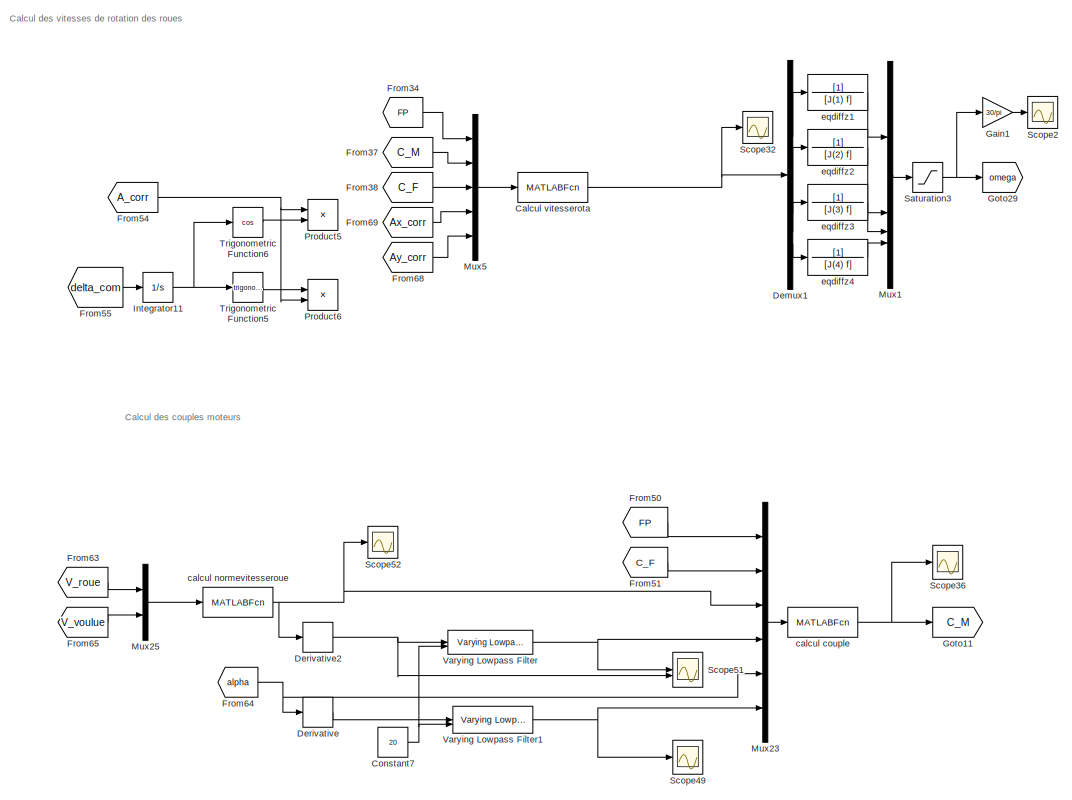
[diagram: root canvas - part 1/8, top right region]
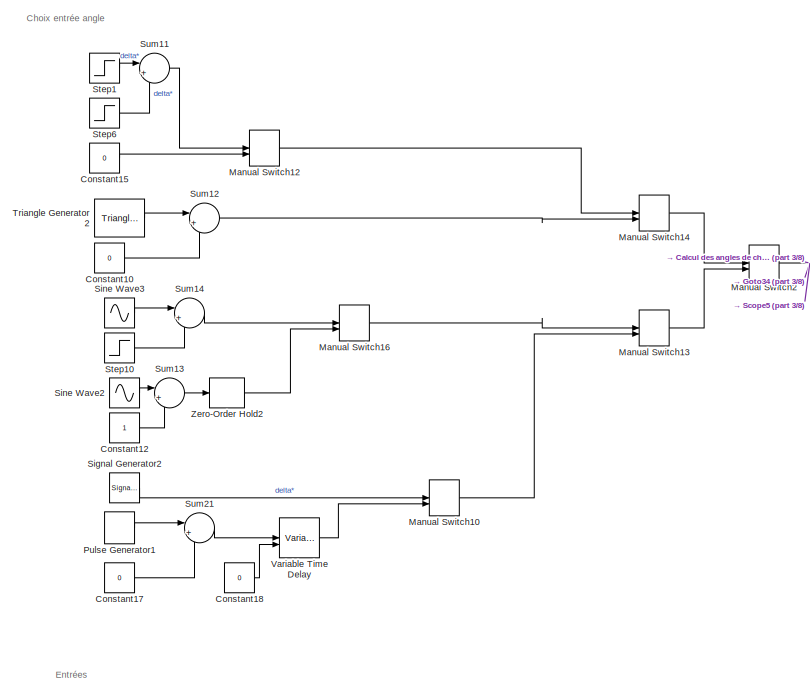
[diagram: root canvas - part 2/8, top left region]
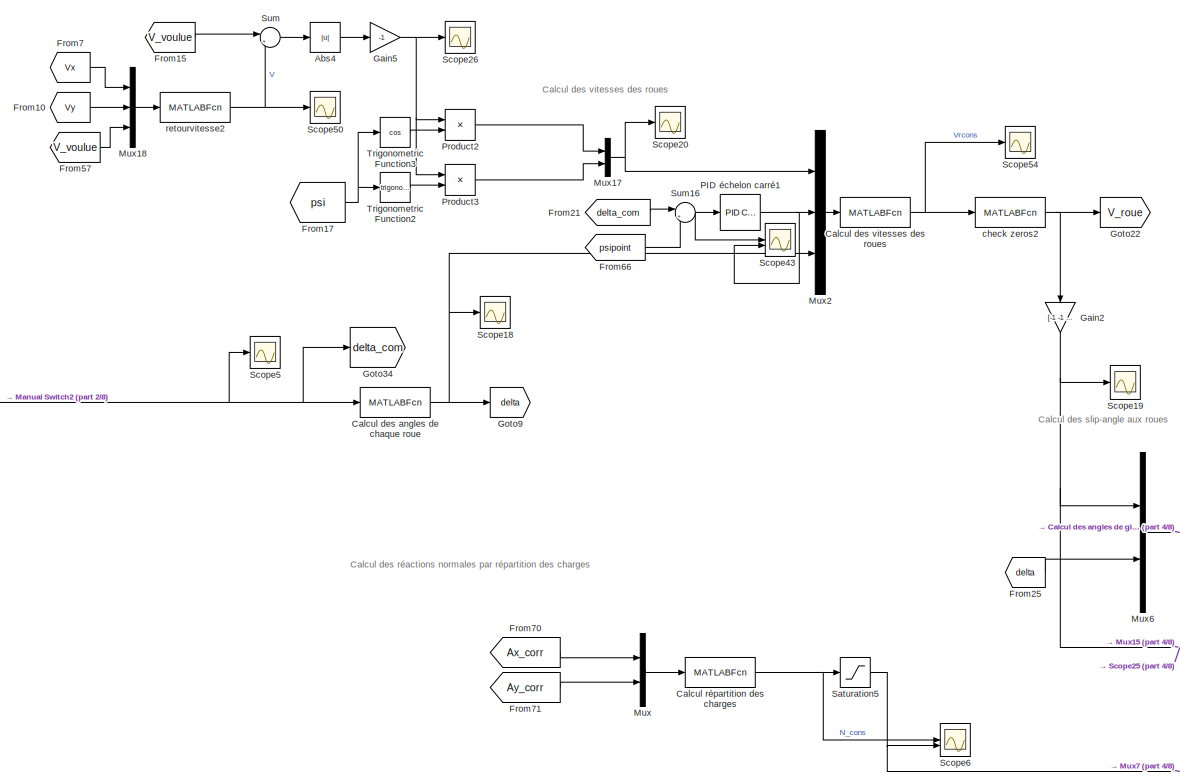
[diagram: root canvas - part 3/8, top center region]
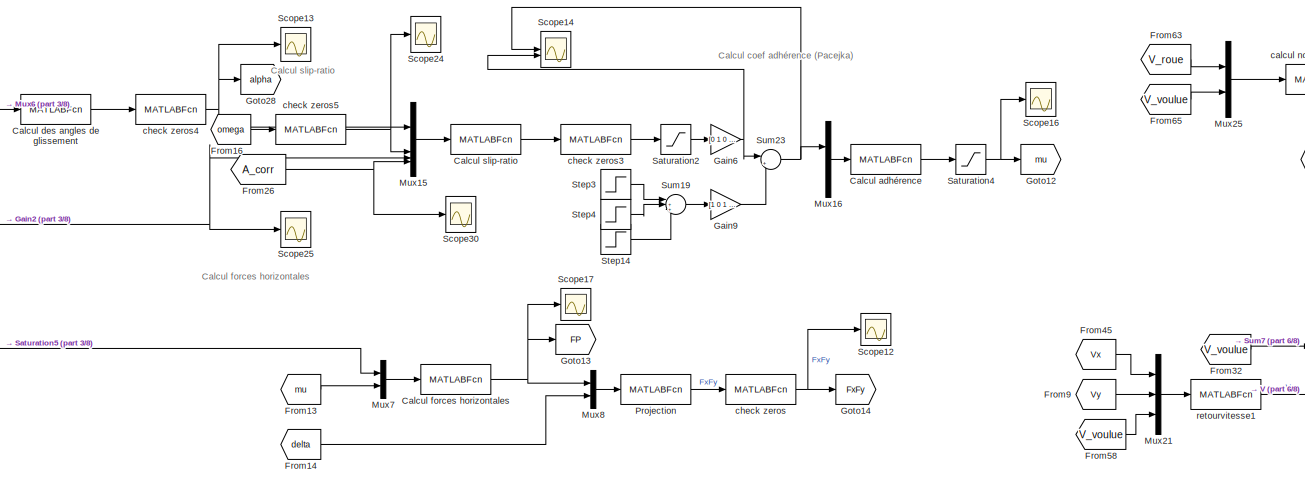
[diagram: root canvas - part 4/8, central region]
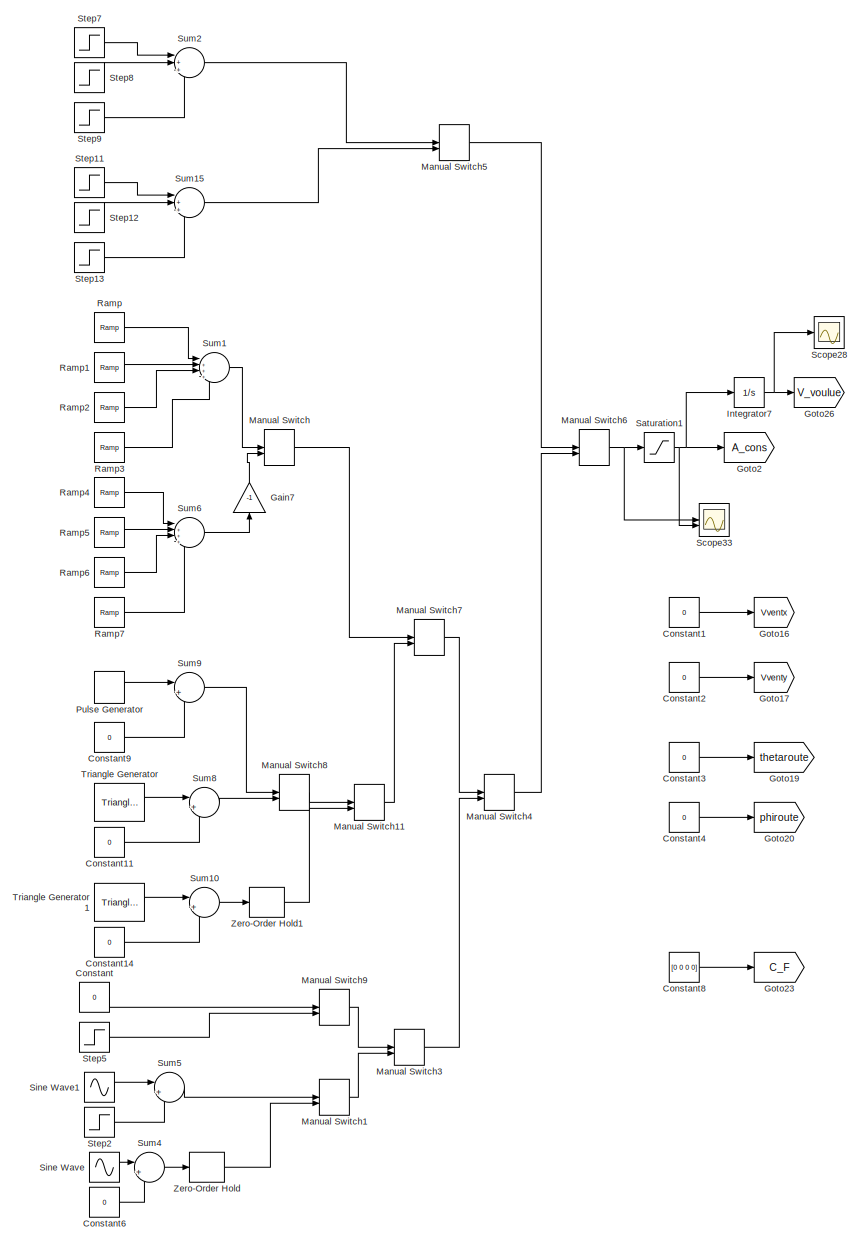
[diagram: root canvas - part 5/8, bottom left region]
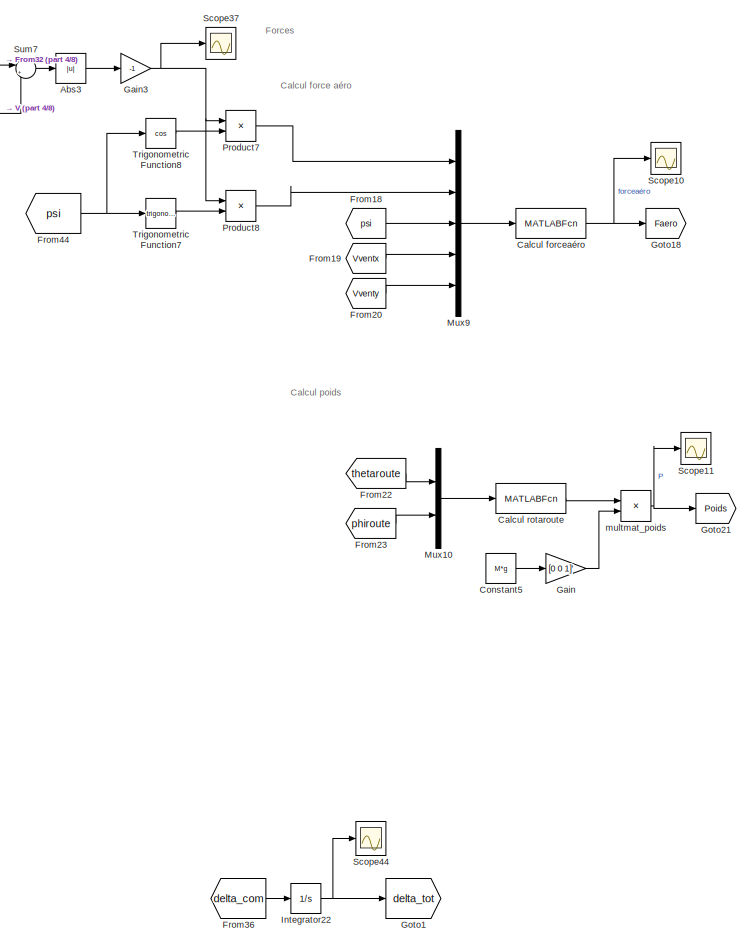
[diagram: root canvas - part 6/8, middle right region]
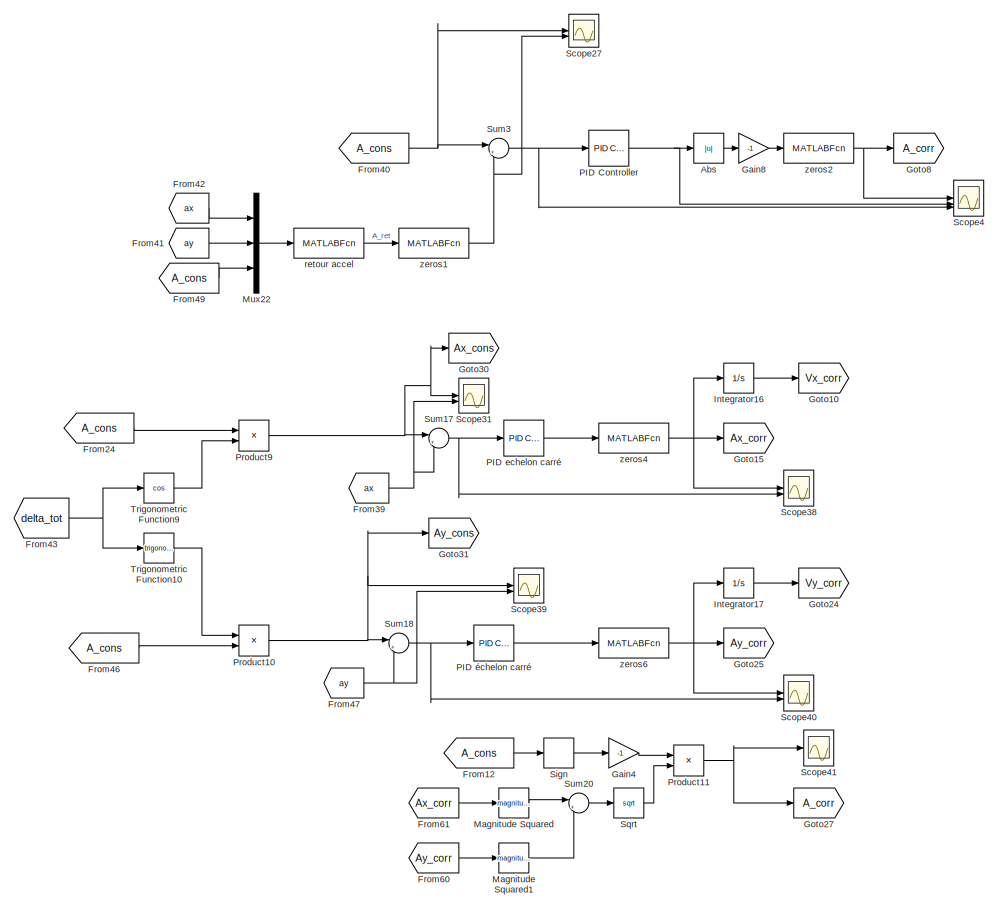
[diagram: root canvas - part 7/8, bottom center region]
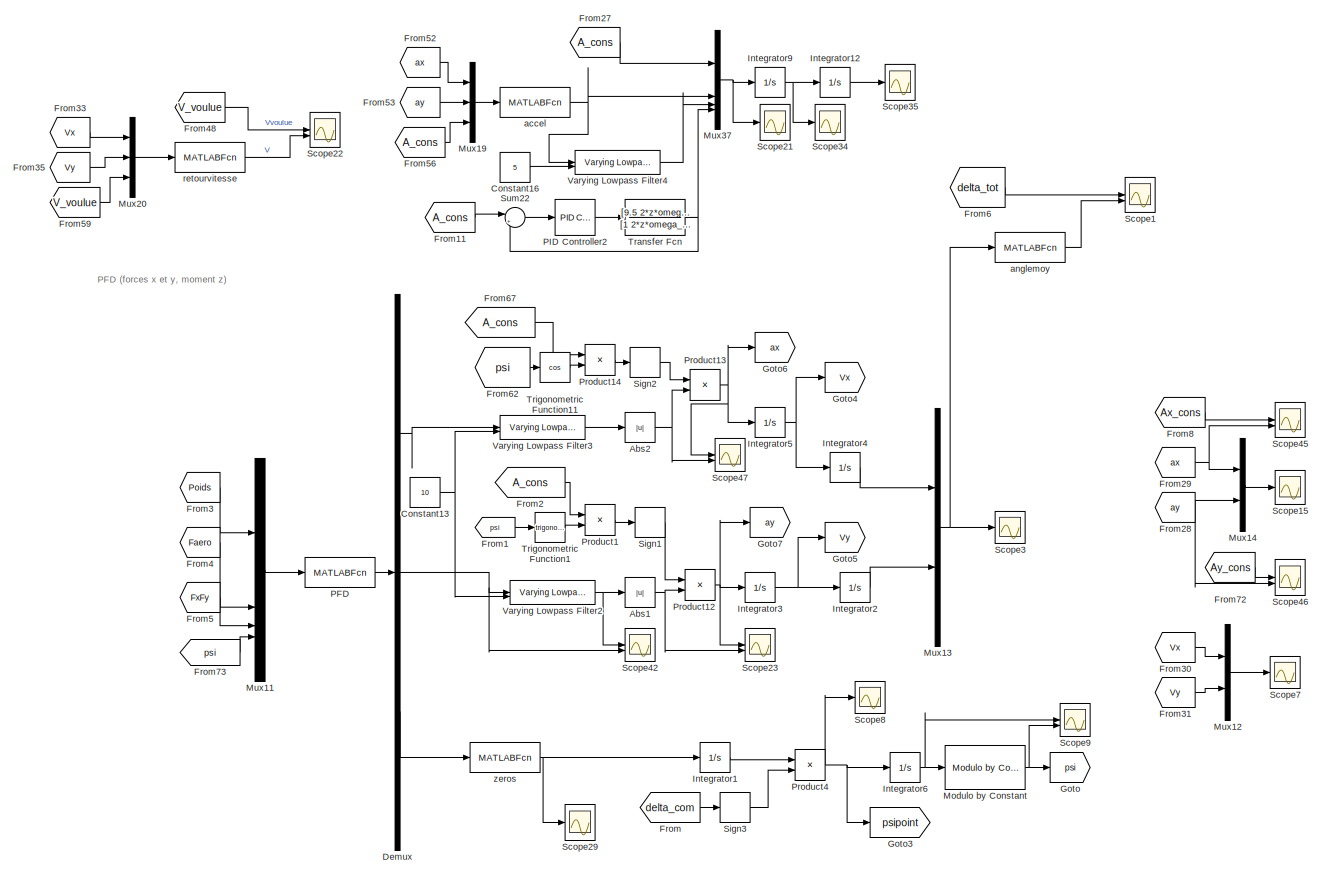
[diagram: root canvas - part 8/8, bottom center region]
MODEL slx_78fb9a316736
KIND model
CONFIG AbsTol = auto
CONFIG EnableMultiTasking = off
CONFIG FixedStep = auto
CONFIG MaxStep = auto
CONFIG MinStep = auto
CONFIG RelTol = 1e-3
CONFIG SampleTimeConstraint = Unconstrained
CONFIG SolverName = FixedStepAuto
CONFIG StartTime = 0.0
CONFIG StopTime = 80
BLOCK [Abs] Abs
  Commented = on
  SaturateOnIntegerOverflow = off
BLOCK [Abs] Abs1
  SaturateOnIntegerOverflow = off
BLOCK [Abs] Abs2
  SaturateOnIntegerOverflow = off
BLOCK [Abs] Abs3
  Commented = through
  SaturateOnIntegerOverflow = off
BLOCK [Abs] Abs4
  Commented = through
  SaturateOnIntegerOverflow = off
BLOCK [MATLABFcn] Calcul adhérence
  MATLABFcn = calcul_adherence(u(1),u(2),u(3),u(4),u(5),u(6),u(7),u(8),Cte_1,Cte_2,Cte_3,Cte_4)
  OutputDimensions = 4*2
BLOCK [MATLABFcn] Calcul des angles de chaque roue
  MATLABFcn = calcul_delta(u,L,d_f)
  OutputDimensions = 4
BLOCK [MATLABFcn] Calcul des angles de glissement
  MATLABFcn = calcul_slipangle(u(1),u(2),u(3),u(4),u(5),u(6),u(7),u(8),u(9),u(10),u(11),u(12))
  OutputDimensions = 4
BLOCK [MATLABFcn] Calcul des vitesses des roues
  MATLABFcn = calcul_vitessesroues(u(1),u(2),u(3),u(4),u(5),u(6),u(7),d_f,d_r,l_f,l_r)
  OutputDimensions = 8
BLOCK [MATLABFcn] Calcul forceaéro
  MATLABFcn = calcul_forceaero(u(1),u(2),u(3),u(4),u(5),C_x,A_L,A_S,rho)
  OutputDimensions = 2
BLOCK [MATLABFcn] Calcul forces horizontales
  MATLABFcn = calcul_forces(u(1),u(2),u(3),u(4),u(5),u(6),u(7),u(8),u(9),u(10),u(11),u(12))
  OutputDimensions = 4*2
BLOCK [MATLABFcn] Calcul rotaroute
  MATLABFcn = calcul_rotaroute(u(1),u(2))
  Output1D = off
  OutputDimensions = [3 3]
BLOCK [MATLABFcn] Calcul répartition des charges
  MATLABFcn = calcul_N(u(1),u(2),M,L,l_r,h,g)
  OutputDimensions = 4
BLOCK [MATLABFcn] Calcul slip-ratio
  MATLABFcn = calcul_lambda(u(1),u(2),u(3),u(4),R(1),R(2),R(3),R(4),u(5),u(6),u(7),u(8),u(9),u(11),u(13),u(15),u(10),u(12),u(14),u(16),u(17))
  OutputDimensions = 4*2
BLOCK [MATLABFcn] Calcul vitesserota
  MATLABFcn = calcul_omega(u(1),u(2),u(3),u(4),u(5),u(6),u(7),u(8),u(9),u(10),u(11),u(12),u(13),u(14),u(15),u(16),u(17),u(18),R(1),R(2),R(3),R(4),J(1),J(2),J(3),J(4))
  OutputDimensions = 4
BLOCK [Constant] Constant
  Value = 0
BLOCK [Constant] Constant1
  Value = 0
BLOCK [Constant] Constant10
  Value = 0
BLOCK [Constant] Constant11
  Value = 0
BLOCK [Constant] Constant12
BLOCK [Constant] Constant13
  Value = 10
  VectorParams1D = off
BLOCK [Constant] Constant14
  Value = 0
BLOCK [Constant] Constant15
  Value = 0
BLOCK [Constant] Constant16
  Value = 5
  VectorParams1D = off
BLOCK [Constant] Constant17
  Value = 0
BLOCK [Constant] Constant18
  Value = 0
BLOCK [Constant] Constant2
  Value = 0
BLOCK [Constant] Constant3
  Value = 0
BLOCK [Constant] Constant4
  Value = 0
BLOCK [Constant] Constant5
  Value = M*g
  VectorParams1D = off
BLOCK [Constant] Constant6
  Value = 0
BLOCK [Constant] Constant7
  Value = 20
  VectorParams1D = off
BLOCK [Constant] Constant8
  Value = [0 0 0 0]
BLOCK [Constant] Constant9
  Value = 0
BLOCK [Demux] Demux
  Outputs = 3
BLOCK [Demux] Demux1
BLOCK [Derivative] Derivative
BLOCK [Derivative] Derivative2
BLOCK [From] From
  GotoTag = delta_com
BLOCK [From] From1
  GotoTag = psi
BLOCK [From] From10
  GotoTag = Vy
BLOCK [From] From11
  GotoTag = A_cons
BLOCK [From] From12
  GotoTag = A_cons
BLOCK [From] From13
  GotoTag = mu
BLOCK [From] From14
  GotoTag = delta
BLOCK [From] From15
  GotoTag = V_voulue
BLOCK [From] From16
  GotoTag = omega
BLOCK [From] From17
  GotoTag = psi
BLOCK [From] From18
  GotoTag = psi
BLOCK [From] From19
  GotoTag = Vventx
BLOCK [From] From2
  GotoTag = A_cons
BLOCK [From] From20
  GotoTag = Vventy
BLOCK [From] From21
  GotoTag = delta_com
BLOCK [From] From22
  GotoTag = thetaroute
BLOCK [From] From23
  GotoTag = phiroute
BLOCK [From] From24
  GotoTag = A_cons
BLOCK [From] From25
  GotoTag = delta
BLOCK [From] From26
  GotoTag = A_corr
BLOCK [From] From27
  GotoTag = A_cons
BLOCK [From] From28
  GotoTag = ay
BLOCK [From] From29
  GotoTag = ax
BLOCK [From] From3
  GotoTag = Poids
BLOCK [From] From30
  GotoTag = Vx
BLOCK [From] From31
  GotoTag = Vy
BLOCK [From] From32
  GotoTag = V_voulue
BLOCK [From] From33
  GotoTag = Vx
BLOCK [From] From34
  GotoTag = FP
BLOCK [From] From35
  GotoTag = Vy
BLOCK [From] From36
  GotoTag = delta_com
BLOCK [From] From37
  GotoTag = C_M
BLOCK [From] From38
  GotoTag = C_F
BLOCK [From] From39
  GotoTag = ax
BLOCK [From] From4
  GotoTag = Faero
BLOCK [From] From40
  Commented = on
  GotoTag = A_cons
BLOCK [From] From41
  Commented = on
  GotoTag = ay
BLOCK [From] From42
  Commented = on
  GotoTag = ax
BLOCK [From] From43
  GotoTag = delta_tot
BLOCK [From] From44
  GotoTag = psi
BLOCK [From] From45
  GotoTag = Vx
BLOCK [From] From46
  GotoTag = A_cons
BLOCK [From] From47
  GotoTag = ay
BLOCK [From] From48
  GotoTag = V_voulue
BLOCK [From] From49
  Commented = on
  GotoTag = A_cons
BLOCK [From] From5
  GotoTag = FxFy
BLOCK [From] From50
  GotoTag = FP
BLOCK [From] From51
  GotoTag = C_F
BLOCK [From] From52
  GotoTag = ax
BLOCK [From] From53
  GotoTag = ay
BLOCK [From] From54
  Commented = on
  GotoTag = A_corr
BLOCK [From] From55
  Commented = on
  GotoTag = delta_com
BLOCK [From] From56
  GotoTag = A_cons
BLOCK [From] From57
  GotoTag = V_voulue
BLOCK [From] From58
  GotoTag = V_voulue
BLOCK [From] From59
  GotoTag = V_voulue
BLOCK [From] From6
  GotoTag = delta_tot
BLOCK [From] From60
  GotoTag = Ay_corr
BLOCK [From] From61
  GotoTag = Ax_corr
BLOCK [From] From62
  GotoTag = psi
BLOCK [From] From63
  GotoTag = V_roue
BLOCK [From] From64
  GotoTag = alpha
BLOCK [From] From65
  GotoTag = V_voulue
BLOCK [From] From66
  GotoTag = psipoint
BLOCK [From] From67
  GotoTag = A_cons
BLOCK [From] From68
  GotoTag = Ay_corr
BLOCK [From] From69
  GotoTag = Ax_corr
BLOCK [From] From7
  GotoTag = Vx
BLOCK [From] From70
  GotoTag = Ax_corr
BLOCK [From] From71
  GotoTag = Ay_corr
BLOCK [From] From72
  GotoTag = Ay_cons
BLOCK [From] From73
  GotoTag = psi
BLOCK [From] From8
  GotoTag = Ax_cons
BLOCK [From] From9
  GotoTag = Vy
BLOCK [Gain] Gain
  Gain = [0 0 1]'
BLOCK [Gain] Gain1
  Gain = 30/pi
BLOCK [Gain] Gain2
  Gain = [-1 -1 -1 -1 -1 -1 -1 -1]
  NameLocation = left
BLOCK [Gain] Gain3
  Commented = through
  Gain = -1
BLOCK [Gain] Gain4
  Gain = -1
BLOCK [Gain] Gain5
  Commented = through
  Gain = -1
BLOCK [Gain] Gain6
  Gain = [0 1 0 1 0 1 0 1]
BLOCK [Gain] Gain7
  Gain = -1
  NameLocation = right
BLOCK [Gain] Gain8
  Commented = on
  Gain = -1
BLOCK [Gain] Gain9
  Gain = [1 0 1 0 1 0 1 0]
  Multiplication = Matrix(u*K)
BLOCK [Goto] Goto
  GotoTag = psi
BLOCK [Goto] Goto1
  GotoTag = delta_tot
BLOCK [Goto] Goto10
  GotoTag = Vx_corr
BLOCK [Goto] Goto11
  GotoTag = C_M
BLOCK [Goto] Goto12
  GotoTag = mu
BLOCK [Goto] Goto13
  GotoTag = FP
BLOCK [Goto] Goto14
  GotoTag = FxFy
BLOCK [Goto] Goto15
  GotoTag = Ax_corr
BLOCK [Goto] Goto16
  GotoTag = Vventx
BLOCK [Goto] Goto17
  GotoTag = Vventy
BLOCK [Goto] Goto18
  GotoTag = Faero
BLOCK [Goto] Goto19
  GotoTag = thetaroute
BLOCK [Goto] Goto2
  GotoTag = A_cons
BLOCK [Goto] Goto20
  GotoTag = phiroute
BLOCK [Goto] Goto21
  GotoTag = Poids
BLOCK [Goto] Goto22
  GotoTag = V_roue
BLOCK [Goto] Goto23
  GotoTag = C_F
BLOCK [Goto] Goto24
  GotoTag = Vy_corr
BLOCK [Goto] Goto25
  GotoTag = Ay_corr
BLOCK [Goto] Goto26
  GotoTag = V_voulue
BLOCK [Goto] Goto27
  GotoTag = A_corr
BLOCK [Goto] Goto28
  GotoTag = alpha
BLOCK [Goto] Goto29
  GotoTag = omega
BLOCK [Goto] Goto3
  GotoTag = psipoint
BLOCK [Goto] Goto30
  GotoTag = Ax_cons
BLOCK [Goto] Goto31
  GotoTag = Ay_cons
BLOCK [Goto] Goto34
  GotoTag = delta_com
BLOCK [Goto] Goto4
  GotoTag = Vx
  NameLocation = top
BLOCK [Goto] Goto5
  GotoTag = Vy
  NameLocation = top
BLOCK [Goto] Goto6
  GotoTag = ax
BLOCK [Goto] Goto7
  GotoTag = ay
BLOCK [Goto] Goto8
  Commented = on
  GotoTag = A_corr
BLOCK [Goto] Goto9
  GotoTag = delta
BLOCK [Integrator] Integrator1
BLOCK [Integrator] Integrator11
  Commented = on
BLOCK [Integrator] Integrator12
BLOCK [Integrator] Integrator16
BLOCK [Integrator] Integrator17
BLOCK [Integrator] Integrator2
BLOCK [Integrator] Integrator22
BLOCK [Integrator] Integrator3
BLOCK [Integrator] Integrator4
BLOCK [Integrator] Integrator5
BLOCK [Integrator] Integrator6
BLOCK [Integrator] Integrator7
BLOCK [Integrator] Integrator9
BLOCK [Math] Magnitude Squared
  Operator = magnitude^2
BLOCK [Math] Magnitude Squared1
  Operator = magnitude^2
BLOCK [ManualSwitch] Manual Switch
BLOCK [ManualSwitch] Manual Switch1
BLOCK [ManualSwitch] Manual Switch10
  CurrentSetting = 0
BLOCK [ManualSwitch] Manual Switch11
BLOCK [ManualSwitch] Manual Switch12
BLOCK [ManualSwitch] Manual Switch13
BLOCK [ManualSwitch] Manual Switch14
BLOCK [ManualSwitch] Manual Switch16
  CurrentSetting = 0
BLOCK [ManualSwitch] Manual Switch2
BLOCK [ManualSwitch] Manual Switch3
BLOCK [ManualSwitch] Manual Switch4
  CurrentSetting = 0
BLOCK [ManualSwitch] Manual Switch5
BLOCK [ManualSwitch] Manual Switch6
  CurrentSetting = 0
BLOCK [ManualSwitch] Manual Switch7
  CurrentSetting = 0
BLOCK [ManualSwitch] Manual Switch8
BLOCK [ManualSwitch] Manual Switch9
  CurrentSetting = 0
BLOCK [Reference] Modulo by Constant  REF=embmathops/Modulo by Constant
  Commented = through
  LibrarySourceBlock = embeddedMathLib/Modulo by Constant
  SourceBlock = embmathops/Modulo by Constant
  SourceType = fixed.system.ModByConstant
BLOCK [Mux] Mux
  DisplayOption = bar
  Inputs = 2
BLOCK [Mux] Mux1
  DisplayOption = bar
BLOCK [Mux] Mux10
  DisplayOption = bar
  Inputs = 2
BLOCK [Mux] Mux11
  DisplayOption = bar
BLOCK [Mux] Mux12
  DisplayOption = bar
  Inputs = 2
BLOCK [Mux] Mux13
  DisplayOption = bar
  Inputs = 2
BLOCK [Mux] Mux14
  DisplayOption = bar
  Inputs = 2
BLOCK [Mux] Mux15
  DisplayOption = bar
BLOCK [Mux] Mux16
  DisplayOption = bar
  Inputs = 1
BLOCK [Mux] Mux17
  DisplayOption = bar
  Inputs = 2
BLOCK [Mux] Mux18
  DisplayOption = bar
  Inputs = 3
BLOCK [Mux] Mux19
  DisplayOption = bar
  Inputs = 3
BLOCK [Mux] Mux2
  DisplayOption = bar
  Inputs = 3
BLOCK [Mux] Mux20
  DisplayOption = bar
  Inputs = 3
BLOCK [Mux] Mux21
  DisplayOption = bar
  Inputs = 3
BLOCK [Mux] Mux22
  Commented = on
  DisplayOption = bar
  Inputs = 3
BLOCK [Mux] Mux23
  DisplayOption = bar
  Inputs = 6
BLOCK [Mux] Mux25
  DisplayOption = bar
  Inputs = 2
BLOCK [Mux] Mux37
  DisplayOption = bar
BLOCK [Mux] Mux5
  DisplayOption = bar
  Inputs = 5
BLOCK [Mux] Mux6
  DisplayOption = bar
  Inputs = 2
BLOCK [Mux] Mux7
  DisplayOption = bar
  Inputs = 2
BLOCK [Mux] Mux8
  DisplayOption = bar
  Inputs = 2
BLOCK [Mux] Mux9
  DisplayOption = bar
  Inputs = 5
BLOCK [MATLABFcn] PFD
  MATLABFcn = eqpfd(u(1),u(2),u(4),u(5),u(6),u(7),u(8),u(9),u(10),u(11),u(12),u(13),u(14),d_f,d_r,l_f,l_r,M,Iz)
  OutputDimensions = 3
BLOCK [Reference] PID Controller  REF=slpidlib/PID Controller
  Commented = on
  LibrarySourceBlock = simulink/Continuous/PID Controller
  SourceBlock = slpidlib/PID Controller
  SourceType = PID 1dof
BLOCK [Reference] PID Controller2  REF=slpidlib/PID Controller
  LibrarySourceBlock = simulink/Continuous/PID Controller
  SourceBlock = slpidlib/PID Controller
  SourceType = PID 1dof
BLOCK [Reference] PID echelon carré  REF=slpidlib/PID Controller
  LibrarySourceBlock = simulink/Continuous/PID Controller
  SourceBlock = slpidlib/PID Controller
  SourceType = PID 1dof
BLOCK [Reference] PID échelon carré  REF=slpidlib/PID Controller
  LibrarySourceBlock = simulink/Continuous/PID Controller
  SourceBlock = slpidlib/PID Controller
  SourceType = PID 1dof
BLOCK [Reference] PID échelon carré1  REF=slpidlib/PID Controller
  LibrarySourceBlock = simulink/Continuous/PID Controller
  SourceBlock = slpidlib/PID Controller
  SourceType = PID 1dof
BLOCK [Product] Product1
BLOCK [Product] Product10
BLOCK [Product] Product11
BLOCK [Product] Product12
BLOCK [Product] Product13
BLOCK [Product] Product14
BLOCK [Product] Product2
BLOCK [Product] Product3
BLOCK [Product] Product4
BLOCK [Product] Product5
  Commented = on
BLOCK [Product] Product6
  Commented = on
BLOCK [Product] Product7
BLOCK [Product] Product8
BLOCK [Product] Product9
BLOCK [MATLABFcn] Projection
  MATLABFcn = projection(u(1),u(2),u(3),u(4),u(5),u(6),u(7),u(8),u(9),u(10),u(11),u(12))
  OutputDimensions = 8
BLOCK [DiscretePulseGenerator] Pulse Generator
  Amplitude = 3
  Period = 5
  PulseType = Time based
  PulseWidth = 30
BLOCK [DiscretePulseGenerator] Pulse Generator1
  PulseType = Time based
  PulseWidth = 50
BLOCK [Reference] Ramp  REF=simulink/Sources/Ramp
  SourceBlock = simulink/Sources/Ramp
  SourceType = Ramp
BLOCK [Reference] Ramp1  REF=simulink/Sources/Ramp
  SourceBlock = simulink/Sources/Ramp
  SourceType = Ramp
BLOCK [Reference] Ramp2  REF=simulink/Sources/Ramp
  SourceBlock = simulink/Sources/Ramp
  SourceType = Ramp
BLOCK [Reference] Ramp3  REF=simulink/Sources/Ramp
  SourceBlock = simulink/Sources/Ramp
  SourceType = Ramp
BLOCK [Reference] Ramp4  REF=simulink/Sources/Ramp
  SourceBlock = simulink/Sources/Ramp
  SourceType = Ramp
BLOCK [Reference] Ramp5  REF=simulink/Sources/Ramp
  SourceBlock = simulink/Sources/Ramp
  SourceType = Ramp
BLOCK [Reference] Ramp6  REF=simulink/Sources/Ramp
  SourceBlock = simulink/Sources/Ramp
  SourceType = Ramp
BLOCK [Reference] Ramp7  REF=simulink/Sources/Ramp
  SourceBlock = simulink/Sources/Ramp
  SourceType = Ramp
BLOCK [Saturate] Saturation1
  LowerLimit = 0
  UpperLimit = 500
BLOCK [Saturate] Saturation2
  LowerLimit = 0
  UpperLimit = 1
BLOCK [Saturate] Saturation3
  LowerLimit = 0
  UpperLimit = 100000
BLOCK [Saturate] Saturation4
  LowerLimit = 0
  UpperLimit = 1
BLOCK [Saturate] Saturation5
  LowerLimit = 1
  UpperLimit = 1999
BLOCK [Scope] Scope1
  Floating = off
  NumInputPorts = 2
  ScopeSpecificationString = Simulink.scopes.TimeScopeBlockCfg('CurrentConfiguration', extmgr.ConfigurationSet(extmgr.Configuration('Core','General UI',true),extmgr.Configuration('Core','Source UI',true),extmgr.Configuration('Sources','WiredSimulink',true,'DataLoggingVariableName','ScopeData1'),extmgr.Configuration('Visuals','Time Domain',true,'SerializedDisplays',{struct('MinYLimReal','-9.96932','MaxYLimReal','89.72387','YLa...<+1637ch>
BLOCK [Scope] Scope10
  Floating = off
  NumInputPorts = 1
  ScopeSpecificationString = Simulink.scopes.TimeScopeBlockCfg('CurrentConfiguration', extmgr.ConfigurationSet(extmgr.Configuration('Core','General UI',true),extmgr.Configuration('Core','Source UI',true),extmgr.Configuration('Sources','WiredSimulink',true,'DataLoggingVariableName','ScopeData3'),extmgr.Configuration('Visuals','Time Domain',true,'SerializedDisplays',{struct('MinYLimReal','-3673.59302','MaxYLimReal','408.177','Y...<+1628ch>
BLOCK [Scope] Scope11
  Floating = off
  NumInputPorts = 1
  ScopeSpecificationString = Simulink.scopes.TimeScopeBlockCfg('CurrentConfiguration', extmgr.ConfigurationSet(extmgr.Configuration('Core','General UI',true),extmgr.Configuration('Core','Source UI',true),extmgr.Configuration('Sources','WiredSimulink',true,'DataLoggingVariableName','ScopeData4'),extmgr.Configuration('Visuals','Time Domain',true,'SerializedDisplays',{struct('MinYLimReal','-490.5','MaxYLimReal','4414.5','YLabelR...<+1623ch>
BLOCK [Scope] Scope12
  Floating = off
  NumInputPorts = 1
  ScopeSpecificationString = Simulink.scopes.TimeScopeBlockCfg('CurrentConfiguration', extmgr.ConfigurationSet(extmgr.Configuration('Core','General UI',true),extmgr.Configuration('Core','Source UI',true),extmgr.Configuration('Sources','WiredSimulink',true,'DataLoggingVariableName','ScopeData5'),extmgr.Configuration('Visuals','Time Domain',true,'SerializedDisplays',{struct('MinYLimReal','-228.51617','MaxYLimReal','2056.64557',...<+1814ch>
BLOCK [Scope] Scope13
  Floating = off
  NumInputPorts = 1
  ScopeSpecificationString = Simulink.scopes.TimeScopeBlockCfg('CurrentConfiguration', extmgr.ConfigurationSet(extmgr.Configuration('Core','General UI',true),extmgr.Configuration('Core','Source UI',true),extmgr.Configuration('Sources','WiredSimulink',true,'DataLoggingVariableName','ScopeData6'),extmgr.Configuration('Visuals','Time Domain',true,'SerializedDisplays',{struct('MinYLimReal','-2.62806','MaxYLimReal','1.84838','YLab...<+1722ch>
BLOCK [Scope] Scope14
  Floating = off
  NumInputPorts = 2
  ScopeSpecificationString = Simulink.scopes.TimeScopeBlockCfg('CurrentConfiguration', extmgr.ConfigurationSet(extmgr.Configuration('Core','General UI',true),extmgr.Configuration('Core','Source UI',true),extmgr.Configuration('Sources','WiredSimulink',true,'DataLoggingVariableName','ScopeData1'),extmgr.Configuration('Visuals','Time Domain',true,'SerializedDisplays',{struct('MinYLimReal','-0.01173','MaxYLimReal','0.02962','YLab...<+3023ch>
BLOCK [Scope] Scope15
  Floating = off
  NumInputPorts = 1
  ScopeSpecificationString = Simulink.scopes.TimeScopeBlockCfg('CurrentConfiguration', extmgr.ConfigurationSet(extmgr.Configuration('Core','General UI',true),extmgr.Configuration('Core','Source UI',true),extmgr.Configuration('Sources','WiredSimulink',true,'DataLoggingVariableName','ScopeData8'),extmgr.Configuration('Visuals','Time Domain',true,'SerializedDisplays',{struct('MinYLimReal','-1.27643','MaxYLimReal','10.99183','YLa...<+1655ch>
BLOCK [Scope] Scope16
  Floating = off
  NumInputPorts = 1
  ScopeSpecificationString = Simulink.scopes.TimeScopeBlockCfg('CurrentConfiguration', extmgr.ConfigurationSet(extmgr.Configuration('Core','General UI',true),extmgr.Configuration('Core','Source UI',true),extmgr.Configuration('Sources','WiredSimulink',true,'DataLoggingVariableName','ScopeData9'),extmgr.Configuration('Visuals','Time Domain',true,'SerializedDisplays',{struct('MinYLimReal','-0.11432','MaxYLimReal','1.02884','YLab...<+1827ch>
BLOCK [Scope] Scope17
  Floating = off
  NumInputPorts = 1
  ScopeSpecificationString = Simulink.scopes.TimeScopeBlockCfg('CurrentConfiguration', extmgr.ConfigurationSet(extmgr.Configuration('Core','General UI',true),extmgr.Configuration('Core','Source UI',true),extmgr.Configuration('Sources','WiredSimulink',true,'DataLoggingVariableName','ScopeData10'),extmgr.Configuration('Visuals','Time Domain',true,'SerializedDisplays',{struct('MinYLimReal','-249.87443','MaxYLimReal','2248.86986'...<+1964ch>
BLOCK [Scope] Scope18
  Floating = off
  NumInputPorts = 1
  ScopeSpecificationString = Simulink.scopes.TimeScopeBlockCfg('CurrentConfiguration', extmgr.ConfigurationSet(extmgr.Configuration('Core','General UI',true),extmgr.Configuration('Core','Source UI',true),extmgr.Configuration('Sources','WiredSimulink',true,'DataLoggingVariableName','ScopeData11'),extmgr.Configuration('Visuals','Time Domain',true,'SerializedDisplays',{struct('MinYLimReal','-0.17813','MaxYLimReal','1.60316','YLa...<+1781ch>
BLOCK [Scope] Scope19
  Floating = off
  NumInputPorts = 1
  ScopeSpecificationString = Simulink.scopes.TimeScopeBlockCfg('CurrentConfiguration', extmgr.ConfigurationSet(extmgr.Configuration('Core','General UI',true),extmgr.Configuration('Core','Source UI',true),extmgr.Configuration('Sources','WiredSimulink',true,'DataLoggingVariableName','ScopeData12'),extmgr.Configuration('Visuals','Time Domain',true,'SerializedDisplays',{struct('MinYLimReal','-0.9441','MaxYLimReal','1.27358','YLab...<+1776ch>
BLOCK [Scope] Scope2
  Floating = off
  NumInputPorts = 1
  ScopeSpecificationString = Simulink.scopes.TimeScopeBlockCfg('CurrentConfiguration', extmgr.ConfigurationSet(extmgr.Configuration('Core','General UI',true),extmgr.Configuration('Core','Source UI',true),extmgr.Configuration('Sources','WiredSimulink',true,'DataLoggingVariableName','ScopeData13'),extmgr.Configuration('Visuals','Time Domain',true,'SerializedDisplays',{struct('MinYLimReal','-3.98164','MaxYLimReal','35.83479','YL...<+1650ch>
BLOCK [Scope] Scope20
  Floating = off
  NumInputPorts = 1
  ScopeSpecificationString = Simulink.scopes.TimeScopeBlockCfg('CurrentConfiguration', extmgr.ConfigurationSet(extmgr.Configuration('Core','General UI',true),extmgr.Configuration('Core','Source UI',true),extmgr.Configuration('Sources','WiredSimulink',true,'DataLoggingVariableName','ScopeData14'),extmgr.Configuration('Visuals','Time Domain',true,'SerializedDisplays',{struct('MinYLimReal','-10.85249','MaxYLimReal','1.22526','YL...<+1634ch>
BLOCK [Scope] Scope21
  Floating = off
  NumInputPorts = 1
  ScopeSpecificationString = Simulink.scopes.TimeScopeBlockCfg('CurrentConfiguration', extmgr.ConfigurationSet(extmgr.Configuration('Core','General UI',true),extmgr.Configuration('Core','Source UI',true),extmgr.Configuration('Sources','WiredSimulink',true,'DataLoggingVariableName','ScopeData15'),extmgr.Configuration('Visuals','Time Domain',true,'SerializedDisplays',{struct('MinYLimReal','-3.44373','MaxYLimReal','17.38449','YL...<+1697ch>
BLOCK [Scope] Scope22
  Floating = off
  NumInputPorts = 2
  ScopeSpecificationString = Simulink.scopes.TimeScopeBlockCfg('CurrentConfiguration', extmgr.ConfigurationSet(extmgr.Configuration('Core','General UI',true),extmgr.Configuration('Core','Source UI',true),extmgr.Configuration('Sources','WiredSimulink',true,'DataLoggingVariableName','ScopeData16'),extmgr.Configuration('Visuals','Time Domain',true,'SerializedDisplays',{struct('MinYLimReal','-1.25','MaxYLimReal','11.25','YLabelRe...<+1633ch>
BLOCK [Scope] Scope23
  Floating = off
  NumInputPorts = 2
  ScopeSpecificationString = Simulink.scopes.TimeScopeBlockCfg('CurrentConfiguration', extmgr.ConfigurationSet(extmgr.Configuration('Core','General UI',true),extmgr.Configuration('Core','Source UI',true),extmgr.Configuration('Sources','WiredSimulink',true,'DataLoggingVariableName','ScopeData1'),extmgr.Configuration('Visuals','Time Domain',true,'SerializedDisplays',{struct('MinYLimReal','-16.82924','MaxYLimReal','16.82924','YL...<+1584ch>
BLOCK [Scope] Scope24
  Floating = off
  NumInputPorts = 1
  ScopeSpecificationString = Simulink.scopes.TimeScopeBlockCfg('CurrentConfiguration', extmgr.ConfigurationSet(extmgr.Configuration('Core','General UI',true),extmgr.Configuration('Core','Source UI',true),extmgr.Configuration('Sources','WiredSimulink',true,'DataLoggingVariableName','ScopeData1'),extmgr.Configuration('Visuals','Time Domain',true,'SerializedDisplays',{struct('MinYLimReal','9.00000','MaxYLimReal','11.00000','YLab...<+2063ch>
BLOCK [Scope] Scope25
  Floating = off
  NumInputPorts = 1
  ScopeSpecificationString = Simulink.scopes.TimeScopeBlockCfg('CurrentConfiguration', extmgr.ConfigurationSet(extmgr.Configuration('Core','General UI',true),extmgr.Configuration('Core','Source UI',true),extmgr.Configuration('Sources','WiredSimulink',true,'DataLoggingVariableName','ScopeData2'),extmgr.Configuration('Visuals','Time Domain',true,'SerializedDisplays',{struct('MinYLimReal','-11.6307','MaxYLimReal','15.25692','YLa...<+1965ch>
BLOCK [Scope] Scope26
  Floating = off
  NumInputPorts = 1
  ScopeSpecificationString = Simulink.scopes.TimeScopeBlockCfg('CurrentConfiguration', extmgr.ConfigurationSet(extmgr.Configuration('Core','General UI',true),extmgr.Configuration('Core','Source UI',true),extmgr.Configuration('Sources','WiredSimulink',true,'DataLoggingVariableName','ScopeData2'),extmgr.Configuration('Visuals','Time Domain',true,'SerializedDisplays',{struct('MinYLimReal','-10.81114','MaxYLimReal','15.0164','YLa...<+1644ch>
BLOCK [Scope] Scope27
  Commented = on
  Floating = off
  NumInputPorts = 2
  ScopeSpecificationString = Simulink.scopes.TimeScopeBlockCfg('CurrentConfiguration', extmgr.ConfigurationSet(extmgr.Configuration('Core','General UI',true),extmgr.Configuration('Core','Source UI',true),extmgr.Configuration('Sources','WiredSimulink',true,'DataLoggingVariableName','ScopeData21'),extmgr.Configuration('Visuals','Time Domain',true,'SerializedDisplays',{struct('MinYLimReal','-1.07305','MaxYLimReal','9.65744','YLa...<+1656ch>
BLOCK [Scope] Scope28
  Floating = off
  NumInputPorts = 1
  ScopeSpecificationString = Simulink.scopes.TimeScopeBlockCfg('CurrentConfiguration', extmgr.ConfigurationSet(extmgr.Configuration('Core','General UI',true),extmgr.Configuration('Core','Source UI',true),extmgr.Configuration('Sources','WiredSimulink',true,'DataLoggingVariableName','ScopeData3'),extmgr.Configuration('Visuals','Time Domain',true,'SerializedDisplays',{struct('MinYLimReal','-15.00000','MaxYLimReal','135.00000','Y...<+1658ch>
BLOCK [Scope] Scope29
  Floating = off
  NumInputPorts = 1
  ScopeSpecificationString = Simulink.scopes.TimeScopeBlockCfg('CurrentConfiguration', extmgr.ConfigurationSet(extmgr.Configuration('Core','General UI',true),extmgr.Configuration('Core','Source UI',true),extmgr.Configuration('Sources','WiredSimulink',true,'DataLoggingVariableName','ScopeData1'),extmgr.Configuration('Visuals','Time Domain',true,'PlotType','Line','SerializedDisplays',{struct('MinYLimReal','-2.32695','MaxYLimRea...<+1748ch>
BLOCK [Scope] Scope3
  Floating = off
  NumInputPorts = 1
  ScopeSpecificationString = Simulink.scopes.TimeScopeBlockCfg('CurrentConfiguration', extmgr.ConfigurationSet(extmgr.Configuration('Core','General UI',true),extmgr.Configuration('Core','Source UI',true),extmgr.Configuration('Sources','WiredSimulink',true,'DataLoggingVariableName','ScopeData23'),extmgr.Configuration('Visuals','Time Domain',true,'SerializedDisplays',{struct('MinYLimReal','-4.0232','MaxYLimReal','36.20882','YLa...<+1567ch>
BLOCK [Scope] Scope30
  Floating = off
  NumInputPorts = 1
  ScopeSpecificationString = Simulink.scopes.TimeScopeBlockCfg('CurrentConfiguration', extmgr.ConfigurationSet(extmgr.Configuration('Core','General UI',true),extmgr.Configuration('Core','Source UI',true),extmgr.Configuration('Sources','WiredSimulink',true,'DataLoggingVariableName','ScopeData3'),extmgr.Configuration('Visuals','Time Domain',true,'SerializedDisplays',{struct('MinYLimReal','-1000.05026','MaxYLimReal','109.96941',...<+2025ch>
BLOCK [Scope] Scope31
  Floating = off
  NumInputPorts = 2
  ScopeSpecificationString = Simulink.scopes.TimeScopeBlockCfg('CurrentConfiguration', extmgr.ConfigurationSet(extmgr.Configuration('Core','General UI',true),extmgr.Configuration('Core','Source UI',true),extmgr.Configuration('Sources','WiredSimulink',true,'DataLoggingVariableName','ScopeData4'),extmgr.Configuration('Visuals','Time Domain',true,'SerializedDisplays',{struct('MinYLimReal','-10.73429','MaxYLimReal','11.72317','YL...<+1634ch>
BLOCK [Scope] Scope32
  Floating = off
  NumInputPorts = 1
  ScopeSpecificationString = Simulink.scopes.TimeScopeBlockCfg('CurrentConfiguration', extmgr.ConfigurationSet(extmgr.Configuration('Core','General UI',true),extmgr.Configuration('Core','Source UI',true),extmgr.Configuration('Sources','WiredSimulink',true,'DataLoggingVariableName','ScopeData6'),extmgr.Configuration('Visuals','Time Domain',true,'SerializedDisplays',{struct('MinYLimReal','-360.99126','MaxYLimReal','432.6309','Y...<+1729ch>
BLOCK [Scope] Scope33
  Floating = off
  NumInputPorts = 2
  ScopeSpecificationString = Simulink.scopes.TimeScopeBlockCfg('CurrentConfiguration', extmgr.ConfigurationSet(extmgr.Configuration('Core','General UI',true),extmgr.Configuration('Core','Source UI',true),extmgr.Configuration('Sources','WiredSimulink',true,'DataLoggingVariableName','ScopeData1'),extmgr.Configuration('Visuals','Time Domain',true,'SerializedDisplays',{struct('MinYLimReal','0.9','MaxYLimReal','1.1','YLabelReal','...<+1629ch>
BLOCK [Scope] Scope34
  Floating = off
  NumInputPorts = 1
  ScopeSpecificationString = Simulink.scopes.TimeScopeBlockCfg('CurrentConfiguration', extmgr.ConfigurationSet(extmgr.Configuration('Core','General UI',true),extmgr.Configuration('Core','Source UI',true),extmgr.Configuration('Sources','WiredSimulink',true,'DataLoggingVariableName','ScopeData1'),extmgr.Configuration('Visuals','Time Domain',true,'SerializedDisplays',{struct('MinYLimReal','-4.38451','MaxYLimReal','20.12597','YLa...<+1675ch>
BLOCK [Scope] Scope35
  Floating = off
  NumInputPorts = 1
  ScopeSpecificationString = Simulink.scopes.TimeScopeBlockCfg('CurrentConfiguration', extmgr.ConfigurationSet(extmgr.Configuration('Core','General UI',true),extmgr.Configuration('Core','Source UI',true),extmgr.Configuration('Sources','WiredSimulink',true,'DataLoggingVariableName','ScopeData2'),extmgr.Configuration('Visuals','Time Domain',true,'SerializedDisplays',{struct('MinYLimReal','-3507.98887','MaxYLimReal','31571.89981...<+1701ch>
BLOCK [Scope] Scope36
  Floating = off
  NumInputPorts = 1
  ScopeSpecificationString = Simulink.scopes.TimeScopeBlockCfg('CurrentConfiguration', extmgr.ConfigurationSet(extmgr.Configuration('Core','General UI',true),extmgr.Configuration('Core','Source UI',true),extmgr.Configuration('Sources','WiredSimulink',true,'DataLoggingVariableName','ScopeData3'),extmgr.Configuration('Visuals','Time Domain',true,'SerializedDisplays',{struct('MinYLimReal','-165.89789','MaxYLimReal','1115.57492',...<+1698ch>
BLOCK [Scope] Scope37
  Floating = off
  NumInputPorts = 1
  ScopeSpecificationString = Simulink.scopes.TimeScopeBlockCfg('CurrentConfiguration', extmgr.ConfigurationSet(extmgr.Configuration('Core','General UI',true),extmgr.Configuration('Core','Source UI',true),extmgr.Configuration('Sources','WiredSimulink',true,'DataLoggingVariableName','ScopeData4'),extmgr.Configuration('Visuals','Time Domain',true,'SerializedDisplays',{struct('MinYLimReal','-3.55611','MaxYLimReal','28.14618','YLa...<+1617ch>
BLOCK [Scope] Scope38
  Floating = off
  NumInputPorts = 2
  ScopeSpecificationString = Simulink.scopes.TimeScopeBlockCfg('CurrentConfiguration', extmgr.ConfigurationSet(extmgr.Configuration('Core','General UI',true),extmgr.Configuration('Core','Source UI',true),extmgr.Configuration('Sources','WiredSimulink',true,'DataLoggingVariableName','ScopeData5'),extmgr.Configuration('Visuals','Time Domain',true,'SerializedDisplays',{struct('MinYLimReal','-3702.43656','MaxYLimReal','31131.46243...<+1648ch>
BLOCK [Scope] Scope39
  Floating = off
  NumInputPorts = 2
  ScopeSpecificationString = Simulink.scopes.TimeScopeBlockCfg('CurrentConfiguration', extmgr.ConfigurationSet(extmgr.Configuration('Core','General UI',true),extmgr.Configuration('Core','Source UI',true),extmgr.Configuration('Sources','WiredSimulink',true,'DataLoggingVariableName','ScopeData6'),extmgr.Configuration('Visuals','Time Domain',true,'SerializedDisplays',{struct('MinYLimReal','-0.56432','MaxYLimReal','5.07884','YLab...<+1656ch>
BLOCK [Scope] Scope4
  Commented = on
  Floating = off
  NumInputPorts = 3
  ScopeSpecificationString = Simulink.scopes.TimeScopeBlockCfg('CurrentConfiguration', extmgr.ConfigurationSet(extmgr.Configuration('Core','General UI',true),extmgr.Configuration('Core','Source UI',true),extmgr.Configuration('Sources','WiredSimulink',true,'DataLoggingVariableName','ScopeData7'),extmgr.Configuration('Visuals','Time Domain',true,'SerializedDisplays',{struct('MinYLimReal','-4194.15365','MaxYLimReal','467.86465',...<+1686ch>
BLOCK [Scope] Scope40
  Floating = off
  NumInputPorts = 2
  ScopeSpecificationString = Simulink.scopes.TimeScopeBlockCfg('CurrentConfiguration', extmgr.ConfigurationSet(extmgr.Configuration('Core','General UI',true),extmgr.Configuration('Core','Source UI',true),extmgr.Configuration('Sources','WiredSimulink',true,'DataLoggingVariableName','ScopeData7'),extmgr.Configuration('Visuals','Time Domain',true,'SerializedDisplays',{struct('MinYLimReal','-1321.28531','MaxYLimReal','172.08602',...<+1669ch>
BLOCK [Scope] Scope41
  Floating = off
  NumInputPorts = 1
  ScopeSpecificationString = Simulink.scopes.TimeScopeBlockCfg('CurrentConfiguration', extmgr.ConfigurationSet(extmgr.Configuration('Core','General UI',true),extmgr.Configuration('Core','Source UI',true),extmgr.Configuration('Sources','WiredSimulink',true,'DataLoggingVariableName','ScopeData8'),extmgr.Configuration('Visuals','Time Domain',true,'SerializedDisplays',{struct('MinYLimReal','-296.15015','MaxYLimReal','31.75829','Y...<+1656ch>
BLOCK [Scope] Scope42
  Floating = off
  NumInputPorts = 2
  ScopeSpecificationString = Simulink.scopes.TimeScopeBlockCfg('CurrentConfiguration', extmgr.ConfigurationSet(extmgr.Configuration('Core','General UI',true),extmgr.Configuration('Core','Source UI',true),extmgr.Configuration('Sources','WiredSimulink',true,'DataLoggingVariableName','ScopeData1'),extmgr.Configuration('Visuals','Time Domain',true,'SerializedDisplays',{struct('MinYLimReal','-16.76708','MaxYLimReal','16.26979','YL...<+1601ch>
BLOCK [Scope] Scope43
  Floating = off
  NumInputPorts = 2
  ScopeSpecificationString = Simulink.scopes.TimeScopeBlockCfg('CurrentConfiguration', extmgr.ConfigurationSet(extmgr.Configuration('Core','General UI',true),extmgr.Configuration('Core','Source UI',true),extmgr.Configuration('Sources','WiredSimulink',true,'DataLoggingVariableName','ScopeData1'),extmgr.Configuration('Visuals','Time Domain',true,'SerializedDisplays',{struct('MinYLimReal','-1.56662','MaxYLimReal','0.57398','YLab...<+1565ch>
BLOCK [Scope] Scope44
  Floating = off
  NumInputPorts = 1
  ScopeSpecificationString = Simulink.scopes.TimeScopeBlockCfg('CurrentConfiguration', extmgr.ConfigurationSet(extmgr.Configuration('Core','General UI',true),extmgr.Configuration('Core','Source UI',true),extmgr.Configuration('Sources','WiredSimulink',true,'DataLoggingVariableName','ScopeData2'),extmgr.Configuration('Visuals','Time Domain',true,'SerializedDisplays',{struct('MinYLimReal','-0.09817','MaxYLimReal','0.88357','YLab...<+1669ch>
BLOCK [Scope] Scope45
  Floating = off
  NumInputPorts = 2
  ScopeSpecificationString = Simulink.scopes.TimeScopeBlockCfg('CurrentConfiguration', extmgr.ConfigurationSet(extmgr.Configuration('Core','General UI',true),extmgr.Configuration('Core','Source UI',true),extmgr.Configuration('Sources','WiredSimulink',true,'DataLoggingVariableName','ScopeData2'),extmgr.Configuration('Visuals','Time Domain',true,'SerializedDisplays',{struct('MinYLimReal','-15.27765','MaxYLimReal','15.47752','YL...<+1656ch>
BLOCK [Scope] Scope46
  Floating = off
  NumInputPorts = 2
  ScopeSpecificationString = Simulink.scopes.TimeScopeBlockCfg('CurrentConfiguration', extmgr.ConfigurationSet(extmgr.Configuration('Core','General UI',true),extmgr.Configuration('Core','Source UI',true),extmgr.Configuration('Sources','WiredSimulink',true,'DataLoggingVariableName','ScopeData3'),extmgr.Configuration('Visuals','Time Domain',true,'SerializedDisplays',{struct('MinYLimReal','-16.76708','MaxYLimReal','16.26979','YL...<+1657ch>
BLOCK [Scope] Scope47
  Floating = off
  NumInputPorts = 2
  ScopeSpecificationString = Simulink.scopes.TimeScopeBlockCfg('CurrentConfiguration', extmgr.ConfigurationSet(extmgr.Configuration('Core','General UI',true),extmgr.Configuration('Core','Source UI',true),extmgr.Configuration('Sources','WiredSimulink',true,'DataLoggingVariableName','ScopeData4'),extmgr.Configuration('Visuals','Time Domain',true,'SerializedDisplays',{struct('MinYLimReal','-16.82924','MaxYLimReal','16.82924','YL...<+1584ch>
BLOCK [Scope] Scope49
  Floating = off
  NumInputPorts = 1
  ScopeSpecificationString = Simulink.scopes.TimeScopeBlockCfg('CurrentConfiguration', extmgr.ConfigurationSet(extmgr.Configuration('Core','General UI',true),extmgr.Configuration('Core','Source UI',true),extmgr.Configuration('Sources','WiredSimulink',true,'DataLoggingVariableName','ScopeData1'),extmgr.Configuration('Visuals','Time Domain',true,'SerializedDisplays',{struct('MinYLimReal','-17.96594','MaxYLimReal','24.12224','YL...<+1815ch>
BLOCK [Scope] Scope5
  Floating = off
  NumInputPorts = 1
  ScopeSpecificationString = Simulink.scopes.TimeScopeBlockCfg('CurrentConfiguration', extmgr.ConfigurationSet(extmgr.Configuration('Core','General UI',true),extmgr.Configuration('Core','Source UI',true),extmgr.Configuration('Sources','WiredSimulink',true,'DataLoggingVariableName','ScopeData2'),extmgr.Configuration('Visuals','Time Domain',true,'SerializedDisplays',{struct('MinYLimReal','-1.9635','MaxYLimReal','1.9635','YLabel...<+1643ch>
BLOCK [Scope] Scope50
  Floating = off
  NumInputPorts = 1
  ScopeSpecificationString = Simulink.scopes.TimeScopeBlockCfg('CurrentConfiguration', extmgr.ConfigurationSet(extmgr.Configuration('Core','General UI',true),extmgr.Configuration('Core','Source UI',true),extmgr.Configuration('Sources','WiredSimulink',true,'DataLoggingVariableName','ScopeData12'),extmgr.Configuration('Visuals','Time Domain',true,'SerializedDisplays',{struct('MinYLimReal','-27.84803','MaxYLimReal','250.6323','Y...<+1646ch>
BLOCK [Scope] Scope51
  Floating = off
  NumInputPorts = 2
  ScopeSpecificationString = Simulink.scopes.TimeScopeBlockCfg('CurrentConfiguration', extmgr.ConfigurationSet(extmgr.Configuration('Core','General UI',true),extmgr.Configuration('Core','Source UI',true),extmgr.Configuration('Sources','WiredSimulink',true,'DataLoggingVariableName','ScopeData2'),extmgr.Configuration('Visuals','Time Domain',true,'SerializedDisplays',{struct('MinYLimReal','-734.75478','MaxYLimReal','114.60303','...<+1979ch>
BLOCK [Scope] Scope52
  Floating = off
  NumInputPorts = 1
  ScopeSpecificationString = Simulink.scopes.TimeScopeBlockCfg('CurrentConfiguration', extmgr.ConfigurationSet(extmgr.Configuration('Core','General UI',true),extmgr.Configuration('Core','Source UI',true),extmgr.Configuration('Sources','WiredSimulink',true,'DataLoggingVariableName','ScopeData3'),extmgr.Configuration('Visuals','Time Domain',true,'SerializedDisplays',{struct('MinYLimReal','-0.33455','MaxYLimReal','3.01097','YLab...<+1744ch>
BLOCK [Scope] Scope54
  Floating = off
  NumInputPorts = 1
  ScopeSpecificationString = Simulink.scopes.TimeScopeBlockCfg('CurrentConfiguration', extmgr.ConfigurationSet(extmgr.Configuration('Core','General UI',true),extmgr.Configuration('Core','Source UI',true),extmgr.Configuration('Sources','WiredSimulink',true,'DataLoggingVariableName','ScopeData1'),extmgr.Configuration('Visuals','Time Domain',true,'SerializedDisplays',{struct('MinYLimReal','-10.25932','MaxYLimReal','2.70155','YLa...<+1789ch>
BLOCK [Scope] Scope6
  Floating = off
  NumInputPorts = 2
  ScopeSpecificationString = Simulink.scopes.TimeScopeBlockCfg('CurrentConfiguration', extmgr.ConfigurationSet(extmgr.Configuration('Core','General UI',true),extmgr.Configuration('Core','Source UI',true),extmgr.Configuration('Sources','WiredSimulink',true,'DataLoggingVariableName','ScopeData26'),extmgr.Configuration('Visuals','Time Domain',true,'SerializedDisplays',{struct('MinYLimReal','-78615.51745','MaxYLimReal','96768.292...<+2361ch>
BLOCK [Scope] Scope7
  Floating = off
  NumInputPorts = 1
  ScopeSpecificationString = Simulink.scopes.TimeScopeBlockCfg('CurrentConfiguration', extmgr.ConfigurationSet(extmgr.Configuration('Core','General UI',true),extmgr.Configuration('Core','Source UI',true),extmgr.Configuration('Sources','WiredSimulink',true,'DataLoggingVariableName','ScopeData27'),extmgr.Configuration('Visuals','Time Domain',true,'SerializedDisplays',{struct('MinYLimReal','-340.47623','MaxYLimReal','102.16271',...<+1631ch>
BLOCK [Scope] Scope8
  Floating = off
  NumInputPorts = 1
  ScopeSpecificationString = Simulink.scopes.TimeScopeBlockCfg('CurrentConfiguration', extmgr.ConfigurationSet(extmgr.Configuration('Core','General UI',true),extmgr.Configuration('Core','Source UI',true),extmgr.Configuration('Sources','WiredSimulink',true,'DataLoggingVariableName','ScopeData28'),extmgr.Configuration('Visuals','Time Domain',true,'SerializedDisplays',{struct('MinYLimReal','-0.1318','MaxYLimReal','1.1862','YLabe...<+1551ch>
BLOCK [Scope] Scope9
  Floating = off
  NumInputPorts = 2
  ScopeSpecificationString = Simulink.scopes.TimeScopeBlockCfg('CurrentConfiguration', extmgr.ConfigurationSet(extmgr.Configuration('Core','General UI',true),extmgr.Configuration('Core','Source UI',true),extmgr.Configuration('Sources','WiredSimulink',true),extmgr.Configuration('Visuals','Time Domain',true,'SerializedDisplays',{struct('MinYLimReal','-1.14363','MaxYLimReal','10.26317','YLabelReal','','MinYLimMag','0.00000','Max...<+1561ch>
BLOCK [Signum] Sign
BLOCK [Signum] Sign1
BLOCK [Signum] Sign2
BLOCK [Signum] Sign3
BLOCK [SignalGenerator] Signal Generator2
  Amplitude = pi/12
  Frequency = 1/0.15
  Units = rad/sec
  WaveForm = square
BLOCK [Sin] Sine Wave
  Phase = pi/2
  SampleTime = 0
BLOCK [Sin] Sine Wave1
  Amplitude = ampli_ent
  Frequency = freq_ent
  Phase = pi/1000
  SampleTime = 0
BLOCK [Sin] Sine Wave2
  Amplitude = pi/12
  Phase = pi/2
  SampleTime = 0
BLOCK [Sin] Sine Wave3
  Amplitude = pi/2
  Frequency = freq_ent
  Phase = pi/1000
  SampleTime = 0
BLOCK [Sqrt] Sqrt
BLOCK [Step] Step1
  After = -pi/12
  SampleTime = 0
  Time = 6
BLOCK [Step] Step10
  After = 0
  SampleTime = 0
  Time = 0
BLOCK [Step] Step11
  SampleTime = 0
  Time = 0
BLOCK [Step] Step12
  After = -1
  SampleTime = 0
  Time = 0.8
BLOCK [Step] Step13
  SampleTime = 0
  Time = 1.75
BLOCK [Step] Step14
  SampleTime = 0
  Time = 6
BLOCK [Step] Step2
  After = 1.5
  SampleTime = 0
  Time = 0
BLOCK [Step] Step3
  SampleTime = 0
  Time = 0
BLOCK [Step] Step4
  After = -1
  SampleTime = 0
  Time = 3
BLOCK [Step] Step5
  After = ampli_ent
  SampleTime = 0
  Time = 0
BLOCK [Step] Step6
  After = pi/12
  SampleTime = 0
  Time = 3
BLOCK [Step] Step7
  SampleTime = 0
  Time = 0
BLOCK [Step] Step8
  After = -1
  SampleTime = 0
BLOCK [Step] Step9
  SampleTime = 0
  Time = 2
BLOCK [Sum] Sum
  Inputs = |+-
BLOCK [Sum] Sum1
  Inputs = |++++
BLOCK [Sum] Sum10
  Inputs = |++
BLOCK [Sum] Sum11
  Inputs = |++
BLOCK [Sum] Sum12
  Inputs = |++
BLOCK [Sum] Sum13
  Inputs = |++
BLOCK [Sum] Sum14
  Inputs = |++
BLOCK [Sum] Sum15
  Inputs = |+++
BLOCK [Sum] Sum16
  Inputs = |+-
BLOCK [Sum] Sum17
  Inputs = |+-
BLOCK [Sum] Sum18
  Inputs = |+-
BLOCK [Sum] Sum19
  Inputs = |+++
BLOCK [Sum] Sum2
  Inputs = |+++
BLOCK [Sum] Sum20
  Inputs = |++
BLOCK [Sum] Sum21
  Inputs = |++
BLOCK [Sum] Sum22
  Inputs = |+-
BLOCK [Sum] Sum23
  Inputs = |++
BLOCK [Sum] Sum3
  Commented = on
  Inputs = |+-
BLOCK [Sum] Sum4
  Inputs = |++
BLOCK [Sum] Sum5
  Inputs = |++
BLOCK [Sum] Sum6
  Inputs = |++++
BLOCK [Sum] Sum7
  Inputs = |+-
BLOCK [Sum] Sum8
  Inputs = |++
BLOCK [Sum] Sum9
  Inputs = |++
BLOCK [TransferFcn] Transfer Fcn
  Denominator = [1 2*z*omega_n omega_n^2]
  Numerator = [9.5 2*z*omega_n (9.5-K)*omega_n^2]
BLOCK [Reference] Triangle Generator  REF=spsTriangleGeneratorLib/Triangle
Generator
  LibrarySourceBlock = sps_lib/Sources/Signal Generator Sources/Triangle\nGenerator
  SourceBlock = spsTriangleGeneratorLib/Triangle\nGenerator
  SourceType = Triangle Generator
BLOCK [Reference] Triangle Generator1  REF=spsTriangleGeneratorLib/Triangle
Generator
  LibrarySourceBlock = sps_lib/Sources/Signal Generator Sources/Triangle\nGenerator
  SourceBlock = spsTriangleGeneratorLib/Triangle\nGenerator
  SourceType = Triangle Generator
BLOCK [Reference] Triangle Generator2  REF=spsTriangleGeneratorLib/Triangle
Generator
  LibrarySourceBlock = sps_lib/Sources/Signal Generator Sources/Triangle\nGenerator
  SourceBlock = spsTriangleGeneratorLib/Triangle\nGenerator
  SourceType = Triangle Generator
BLOCK [Trigonometry] Trigonometric Function1
BLOCK [Trigonometry] Trigonometric Function10
BLOCK [Trigonometry] Trigonometric Function11
  Operator = cos
BLOCK [Trigonometry] Trigonometric Function2
BLOCK [Trigonometry] Trigonometric Function3
  Operator = cos
BLOCK [Trigonometry] Trigonometric Function5
  Commented = on
BLOCK [Trigonometry] Trigonometric Function6
  Commented = on
  Operator = cos
BLOCK [Trigonometry] Trigonometric Function7
BLOCK [Trigonometry] Trigonometric Function8
  Operator = cos
BLOCK [Trigonometry] Trigonometric Function9
  Operator = cos
BLOCK [VariableTransportDelay] Variable Time Delay
  Commented = on
  MaximumDelay = 10
BLOCK [Reference] Varying Lowpass Filter  REF=cstblocks/Linear Parameter Varying/Varying Lowpass Filter
  SourceBlock = cstblocks/Linear Parameter Varying/Varying Lowpass Filter
  SourceType = Varying Lowpass Filter
BLOCK [Reference] Varying Lowpass Filter1  REF=cstblocks/Linear Parameter Varying/Varying Lowpass Filter
  SourceBlock = cstblocks/Linear Parameter Varying/Varying Lowpass Filter
  SourceType = Varying Lowpass Filter
BLOCK [Reference] Varying Lowpass Filter2  REF=cstblocks/Linear Parameter Varying/Varying Lowpass Filter
  SourceBlock = cstblocks/Linear Parameter Varying/Varying Lowpass Filter
  SourceType = Varying Lowpass Filter
BLOCK [Reference] Varying Lowpass Filter3  REF=cstblocks/Linear Parameter Varying/Varying Lowpass Filter
  SourceBlock = cstblocks/Linear Parameter Varying/Varying Lowpass Filter
  SourceType = Varying Lowpass Filter
BLOCK [Reference] Varying Lowpass Filter4  REF=cstblocks/Linear Parameter Varying/Varying Lowpass Filter
  SourceBlock = cstblocks/Linear Parameter Varying/Varying Lowpass Filter
  SourceType = Varying Lowpass Filter
BLOCK [ZeroOrderHold] Zero-Order Hold
  SampleTime = 0.1
BLOCK [ZeroOrderHold] Zero-Order Hold1
  SampleTime = 1/50
BLOCK [ZeroOrderHold] Zero-Order Hold2
BLOCK [MATLABFcn] accel
  MATLABFcn = calcul_retourvitesse(u(1),u(2),u(3))
  OutputDimensions = 1
BLOCK [MATLABFcn] anglemoy
  MATLABFcn = angle_moy(u(1),u(2))
  OutputDimensions = 1
BLOCK [MATLABFcn] calcul couple
  MATLABFcn = calcul_moteur(u(1),u(2),u(3),u(4),u(5),u(6),u(7),u(8),u(9),u(10),u(11),u(12),R(1),R(2),R(3),R(4),J(1),J(2),J(3),J(4),u(13),u(14),u(15),u(16),u(17),u(18),u(19),u(20),u(21),u(22),u(23),u(24),u(25),u(26),u(27),u(28))
  OutputDimensions = 4
BLOCK [MATLABFcn] calcul normevitesseroue
  MATLABFcn = calcul_normevitesseroue(u(1),u(2),u(3),u(4),u(5),u(6),u(7),u(8),u(9))
  OutputDimensions = 4
BLOCK [MATLABFcn] check zeros
  MATLABFcn = check_zeros_8(u(1),u(2),u(3),u(4),u(5),u(6),u(7),u(8),EPSILON)
  OutputDimensions = 8
BLOCK [MATLABFcn] check zeros2
  MATLABFcn = check_zeros_8(u(1),u(2),u(3),u(4),u(5),u(6),u(7),u(8),EPSILON)
  OutputDimensions = 8
BLOCK [MATLABFcn] check zeros3
  MATLABFcn = check_zeros_8(u(1),u(2),u(3),u(4),u(5),u(6),u(7),u(8),EPSILON)
  OutputDimensions = 8
BLOCK [MATLABFcn] check zeros4
  MATLABFcn = check_zeros_4(u(1),u(2),u(3),u(4),EPSILON)
  OutputDimensions = 4
BLOCK [MATLABFcn] check zeros5
  MATLABFcn = check_zeros_4(u(1),u(2),u(3),u(4),EPSILON)
  OutputDimensions = 4
BLOCK [TransferFcn] eqdiffz1
  Denominator = [J(1) f]
BLOCK [TransferFcn] eqdiffz2
  Denominator = [J(2) f]
BLOCK [TransferFcn] eqdiffz3
  Denominator = [J(3) f]
BLOCK [TransferFcn] eqdiffz4
  Denominator = [J(4) f]
BLOCK [Product] multmat_poids
  Multiplication = Matrix(*)
BLOCK [MATLABFcn] retour accel
  Commented = on
  MATLABFcn = calcul_retourvitesse(u(1),u(2),u(3))
  OutputDimensions = 1
BLOCK [MATLABFcn] retourvitesse
  MATLABFcn = calcul_retourvitesse(u(1),u(2),u(3))
  OutputDimensions = 1
BLOCK [MATLABFcn] retourvitesse1
  MATLABFcn = calcul_retourvitesse(u(1),u(2),u(3))
  OutputDimensions = 1
BLOCK [MATLABFcn] retourvitesse2
  MATLABFcn = calcul_retourvitesse(u(1),u(2),u(3))
  OutputDimensions = 1
BLOCK [MATLABFcn] zeros
  MATLABFcn = check_zeros_1(u(1),EPSILON)
BLOCK [MATLABFcn] zeros1
  Commented = on
  MATLABFcn = check_zeros_1(u(1),1e-9)
BLOCK [MATLABFcn] zeros2
  Commented = on
  MATLABFcn = check_zeros_1(u(1),1e-9)
BLOCK [MATLABFcn] zeros4
  MATLABFcn = check_zeros_1(u(1),1e-9)
BLOCK [MATLABFcn] zeros6
  MATLABFcn = check_zeros_1(u(1),1e-9)
ANNOTATION (root): Calcul coef adhérence (Pacejka)
ANNOTATION (root): Calcul des couples moteurs
ANNOTATION (root): Calcul des réactions normales par répartition des charges
ANNOTATION (root): Calcul des slip-angle aux roues
ANNOTATION (root): Calcul des vitesses de rotation des roues
ANNOTATION (root): Calcul des vitesses des roues
ANNOTATION (root): Calcul force aéro
ANNOTATION (root): Calcul forces horizontales
ANNOTATION (root): Calcul poids
ANNOTATION (root): Calcul slip-ratio
ANNOTATION (root): Choix entrée angle
ANNOTATION (root): Entrées
ANNOTATION (root): Forces
ANNOTATION (root): PFD (forces x et y, moment z)
NET Abs1:1 -> Product12:2, Scope23:2
NET Abs2:1 -> Product13:2, Scope47:2
LINE Abs3:1 -> Gain3:1
LINE Abs4:1 -> Gain5:1
LINE Abs:1 -> Gain8:1
LINE Calcul adhérence:1 -> Saturation4:1
NET Calcul des angles de chaque roue:1 -> Goto9:1, Mux2:3, Scope18:1
LINE Calcul des angles de glissement:1 -> check zeros4:1
NET Calcul des vitesses des roues:1 -> Scope54:1, check zeros2:1
NET Calcul forceaéro:1 -> Goto18:1, Scope10:1
NET Calcul forces horizontales:1 -> Goto13:1, Mux8:1, Scope17:1
LINE Calcul rotaroute:1 -> multmat_poids:1
NET Calcul répartition des charges:1 -> Saturation5:1, Scope6:1
LINE Calcul slip-ratio:1 -> check zeros3:1
NET Calcul vitesserota:1 -> Demux1:1, Scope32:1
LINE Constant10:1 -> Sum12:2
LINE Constant11:1 -> Sum8:2
LINE Constant12:1 -> Sum13:2
NET Constant13:1 -> Varying Lowpass Filter2:2, Varying Lowpass Filter3:2
LINE Constant14:1 -> Sum10:2
LINE Constant15:1 -> Manual Switch12:2
LINE Constant16:1 -> Varying Lowpass Filter4:2
LINE Constant17:1 -> Sum21:2
LINE Constant18:1 -> Variable Time Delay:2
LINE Constant1:1 -> Goto16:1
LINE Constant2:1 -> Goto17:1
LINE Constant3:1 -> Goto19:1
LINE Constant4:1 -> Goto20:1
LINE Constant5:1 -> Gain:1
LINE Constant6:1 -> Sum4:2
NET Constant7:1 -> Varying Lowpass Filter1:2, Varying Lowpass Filter:2
LINE Constant8:1 -> Goto23:1
LINE Constant9:1 -> Sum9:2
LINE Constant:1 -> Manual Switch9:1
LINE Demux1:1 -> eqdiffz1:1
LINE Demux1:2 -> eqdiffz2:1
LINE Demux1:3 -> eqdiffz3:1
LINE Demux1:4 -> eqdiffz4:1
LINE Demux:1 -> Varying Lowpass Filter3:1
NET Demux:2 -> Scope42:2, Varying Lowpass Filter2:1
LINE Demux:3 -> zeros:1
NET Derivative2:1 -> Scope51:2, Varying Lowpass Filter:1
LINE Derivative:1 -> Varying Lowpass Filter1:1
LINE From10:1 -> Mux18:2
LINE From11:1 -> Sum22:1
LINE From12:1 -> Sign:1
LINE From13:1 -> Mux7:2
LINE From14:1 -> Mux8:2
LINE From15:1 -> Sum:1
LINE From16:1 -> check zeros5:1
NET From17:1 -> Trigonometric Function2:1, Trigonometric Function3:1
LINE From18:1 -> Mux9:3
LINE From19:1 -> Mux9:4
LINE From1:1 -> Trigonometric Function1:1
LINE From20:1 -> Mux9:5
LINE From21:1 -> Sum16:1
LINE From22:1 -> Mux10:1
LINE From23:1 -> Mux10:2
LINE From24:1 -> Product9:1
LINE From25:1 -> Mux6:2
NET From26:1 -> Mux15:4, Scope30:1
LINE From27:1 -> Mux37:1
NET From28:1 -> Mux14:2, Scope46:2
NET From29:1 -> Mux14:1, Scope45:2
LINE From2:1 -> Product1:1
LINE From30:1 -> Mux12:1
LINE From31:1 -> Mux12:2
LINE From32:1 -> Sum7:1
LINE From33:1 -> Mux20:1
LINE From34:1 -> Mux5:1
LINE From35:1 -> Mux20:2
LINE From36:1 -> Integrator22:1
LINE From37:1 -> Mux5:2
LINE From38:1 -> Mux5:3
NET From39:1 -> Scope31:2, Sum17:2
LINE From3:1 -> Mux11:1
NET From40:1 -> Scope27:1, Sum3:1
LINE From41:1 -> Mux22:2
LINE From42:1 -> Mux22:1
NET From43:1 -> Trigonometric Function10:1, Trigonometric Function9:1
NET From44:1 -> Trigonometric Function7:1, Trigonometric Function8:1
LINE From45:1 -> Mux21:1
LINE From46:1 -> Product10:2
NET From47:1 -> Scope39:2, Sum18:2
LINE From48:1 -> Scope22:1
LINE From49:1 -> Mux22:3
LINE From4:1 -> Mux11:2
LINE From50:1 -> Mux23:1
LINE From51:1 -> Mux23:2
LINE From52:1 -> Mux19:1
LINE From53:1 -> Mux19:2
NET From54:1 -> Product5:1, Product6:2
LINE From55:1 -> Integrator11:1
LINE From56:1 -> Mux19:3
LINE From57:1 -> Mux18:3
LINE From58:1 -> Mux21:3
LINE From59:1 -> Mux20:3
LINE From5:1 -> Mux11:3
LINE From60:1 -> Magnitude Squared1:1
LINE From61:1 -> Magnitude Squared:1
LINE From62:1 -> Trigonometric Function11:1
LINE From63:1 -> Mux25:1
NET From64:1 -> Derivative:1, Mux23:5
LINE From65:1 -> Mux25:2
LINE From66:1 -> Sum16:2
LINE From67:1 -> Product14:1
LINE From68:1 -> Mux5:5
LINE From69:1 -> Mux5:4
LINE From6:1 -> Scope1:1
LINE From70:1 -> Mux:1
LINE From71:1 -> Mux:2
LINE From72:1 -> Scope46:1
LINE From73:1 -> Mux11:4
LINE From7:1 -> Mux18:1
LINE From8:1 -> Scope45:1
LINE From9:1 -> Mux21:2
LINE From:1 -> Sign3:1
LINE Gain1:1 -> Scope2:1
NET Gain2:1 -> Mux15:3, Mux6:1, Scope19:1, Scope25:1
NET Gain3:1 -> Product7:1, Product8:1, Scope37:1
LINE Gain4:1 -> Product11:1
NET Gain5:1 -> Product2:1, Product3:1, Scope26:1
NET Gain6:1 -> Scope14:2, Sum23:1
LINE Gain7:1 -> Manual Switch:2
LINE Gain8:1 -> zeros2:1
LINE Gain9:1 -> Sum23:2
LINE Gain:1 -> multmat_poids:2
NET Integrator11:1 -> Trigonometric Function5:1, Trigonometric Function6:1
LINE Integrator12:1 -> Scope35:1
LINE Integrator16:1 -> Goto10:1
LINE Integrator17:1 -> Goto24:1
LINE Integrator1:1 -> Product4:1
NET Integrator22:1 -> Goto1:1, Scope44:1
LINE Integrator2:1 -> Mux13:2
NET Integrator3:1 -> Goto5:1, Integrator2:1
LINE Integrator4:1 -> Mux13:1
NET Integrator5:1 -> Goto4:1, Integrator4:1
NET Integrator6:1 -> Modulo by Constant:1, Scope9:1
NET Integrator7:1 -> Goto26:1, Scope28:1
NET Integrator9:1 -> Integrator12:1, Scope34:1
LINE Magnitude Squared1:1 -> Sum20:2
LINE Magnitude Squared:1 -> Sum20:1
LINE Manual Switch10:1 -> Manual Switch13:2
LINE Manual Switch11:1 -> Manual Switch7:2
LINE Manual Switch12:1 -> Manual Switch14:1
LINE Manual Switch13:1 -> Manual Switch2:2
LINE Manual Switch14:1 -> Manual Switch2:1
LINE Manual Switch16:1 -> Manual Switch13:1
LINE Manual Switch1:1 -> Manual Switch3:2
NET Manual Switch2:1 -> Calcul des angles de chaque roue:1, Goto34:1, Scope5:1
LINE Manual Switch3:1 -> Manual Switch4:2
LINE Manual Switch4:1 -> Manual Switch6:2
LINE Manual Switch5:1 -> Manual Switch6:1
NET Manual Switch6:1 -> Saturation1:1, Scope33:1
LINE Manual Switch7:1 -> Manual Switch4:1
LINE Manual Switch8:1 -> Manual Switch11:1
LINE Manual Switch9:1 -> Manual Switch3:1
LINE Manual Switch:1 -> Manual Switch7:1
NET Modulo by Constant:1 -> Goto:1, Scope9:2
LINE Mux10:1 -> Calcul rotaroute:1
LINE Mux11:1 -> PFD:1
LINE Mux12:1 -> Scope7:1
NET Mux13:1 -> Scope3:1, anglemoy:1
LINE Mux14:1 -> Scope15:1
LINE Mux15:1 -> Calcul slip-ratio:1
LINE Mux16:1 -> Calcul adhérence:1
NET Mux17:1 -> Mux2:1, Scope20:1
LINE Mux18:1 -> retourvitesse2:1
LINE Mux19:1 -> accel:1
LINE Mux1:1 -> Saturation3:1
LINE Mux20:1 -> retourvitesse:1
LINE Mux21:1 -> retourvitesse1:1
LINE Mux22:1 -> retour accel:1
LINE Mux23:1 -> calcul couple:1
LINE Mux25:1 -> calcul normevitesseroue:1
LINE Mux2:1 -> Calcul des vitesses des roues:1
NET Mux37:1 -> Integrator9:1, Scope21:1
LINE Mux5:1 -> Calcul vitesserota:1
LINE Mux6:1 -> Calcul des angles de glissement:1
LINE Mux7:1 -> Calcul forces horizontales:1
LINE Mux8:1 -> Projection:1
LINE Mux9:1 -> Calcul forceaéro:1
LINE Mux:1 -> Calcul répartition des charges:1
LINE PFD:1 -> Demux:1
LINE PID Controller2:1 -> Transfer Fcn:1
NET PID Controller:1 -> Abs:1, Scope4:2
LINE PID echelon carré:1 -> zeros4:1
NET PID échelon carré1:1 -> Mux2:2, Scope43:2
LINE PID échelon carré:1 -> zeros6:1
NET Product10:1 -> Goto31:1, Scope39:1, Sum18:1
NET Product11:1 -> Goto27:1, Scope41:1
NET Product12:1 -> Goto7:1, Integrator3:1, Scope23:1
NET Product13:1 -> Goto6:1, Integrator5:1, Scope47:1
LINE Product14:1 -> Sign2:1
LINE Product1:1 -> Sign1:1
LINE Product2:1 -> Mux17:1
LINE Product3:1 -> Mux17:2
NET Product4:1 -> Goto3:1, Integrator6:1, Scope8:1
LINE Product7:1 -> Mux9:1
LINE Product8:1 -> Mux9:2
NET Product9:1 -> Goto30:1, Scope31:1, Sum17:1
LINE Projection:1 -> check zeros:1
LINE Pulse Generator1:1 -> Sum21:1
LINE Pulse Generator:1 -> Sum9:1
LINE Ramp1:1 -> Sum1:2
LINE Ramp2:1 -> Sum1:3
LINE Ramp3:1 -> Sum1:4
LINE Ramp4:1 -> Sum6:1
LINE Ramp5:1 -> Sum6:2
LINE Ramp6:1 -> Sum6:3
LINE Ramp7:1 -> Sum6:4
LINE Ramp:1 -> Sum1:1
NET Saturation1:1 -> Goto2:1, Integrator7:1, Scope33:2
LINE Saturation2:1 -> Gain6:1
NET Saturation3:1 -> Gain1:1, Goto29:1
NET Saturation4:1 -> Goto12:1, Scope16:1
NET Saturation5:1 -> Mux7:1, Scope6:2
LINE Sign1:1 -> Product12:1
LINE Sign2:1 -> Product13:1
LINE Sign3:1 -> Product4:2
LINE Sign:1 -> Gain4:1
LINE Signal Generator2:1 -> Manual Switch10:1
LINE Sine Wave1:1 -> Sum5:1
LINE Sine Wave2:1 -> Sum13:1
LINE Sine Wave3:1 -> Sum14:1
LINE Sine Wave:1 -> Sum4:1
LINE Sqrt:1 -> Product11:2
LINE Step10:1 -> Sum14:2
LINE Step11:1 -> Sum15:1
LINE Step12:1 -> Sum15:2
LINE Step13:1 -> Sum15:3
LINE Step14:1 -> Sum19:3
LINE Step1:1 -> Sum11:1
LINE Step2:1 -> Sum5:2
LINE Step3:1 -> Sum19:1
LINE Step4:1 -> Sum19:2
LINE Step5:1 -> Manual Switch9:2
LINE Step6:1 -> Sum11:2
LINE Step7:1 -> Sum2:1
LINE Step8:1 -> Sum2:2
LINE Step9:1 -> Sum2:3
LINE Sum10:1 -> Zero-Order Hold1:1
LINE Sum11:1 -> Manual Switch12:1
LINE Sum12:1 -> Manual Switch14:2
LINE Sum13:1 -> Zero-Order Hold2:1
LINE Sum14:1 -> Manual Switch16:1
LINE Sum15:1 -> Manual Switch5:2
NET Sum16:1 -> PID échelon carré1:1, Scope43:1
NET Sum17:1 -> PID echelon carré:1, Scope38:2
NET Sum18:1 -> PID échelon carré:1, Scope40:2
LINE Sum19:1 -> Gain9:1
LINE Sum1:1 -> Manual Switch:1
LINE Sum20:1 -> Sqrt:1
LINE Sum21:1 -> Variable Time Delay:1
LINE Sum22:1 -> PID Controller2:1
NET Sum23:1 -> Mux16:1, Scope14:1
LINE Sum2:1 -> Manual Switch5:1
NET Sum3:1 -> PID Controller:1, Scope4:3
LINE Sum4:1 -> Zero-Order Hold:1
LINE Sum5:1 -> Manual Switch1:1
LINE Sum6:1 -> Gain7:1
LINE Sum7:1 -> Abs3:1
LINE Sum8:1 -> Manual Switch8:2
LINE Sum9:1 -> Manual Switch8:1
LINE Sum:1 -> Abs4:1
NET Transfer Fcn:1 -> Mux37:4, Sum22:2
LINE Triangle Generator1:1 -> Sum10:1
LINE Triangle Generator2:1 -> Sum12:1
LINE Triangle Generator:1 -> Sum8:1
LINE Trigonometric Function10:1 -> Product10:1
LINE Trigonometric Function11:1 -> Product14:2
LINE Trigonometric Function1:1 -> Product1:2
LINE Trigonometric Function2:1 -> Product3:2
LINE Trigonometric Function3:1 -> Product2:2
LINE Trigonometric Function5:1 -> Product6:1
LINE Trigonometric Function6:1 -> Product5:2
LINE Trigonometric Function7:1 -> Product8:2
LINE Trigonometric Function8:1 -> Product7:2
LINE Trigonometric Function9:1 -> Product9:2
LINE Variable Time Delay:1 -> Manual Switch10:2
NET Varying Lowpass Filter1:1 -> Mux23:6, Scope49:1
NET Varying Lowpass Filter2:1 -> Abs1:1, Scope42:1
LINE Varying Lowpass Filter3:1 -> Abs2:1
LINE Varying Lowpass Filter4:1 -> Mux37:3
NET Varying Lowpass Filter:1 -> Mux23:4, Scope51:1
LINE Zero-Order Hold1:1 -> Manual Switch11:2
LINE Zero-Order Hold2:1 -> Manual Switch16:2
LINE Zero-Order Hold:1 -> Manual Switch1:2
NET accel:1 -> Mux37:2, Varying Lowpass Filter4:1
LINE anglemoy:1 -> Scope1:2
NET calcul couple:1 -> Goto11:1, Scope36:1
NET calcul normevitesseroue:1 -> Derivative2:1, Mux23:3, Scope52:1
NET check zeros2:1 -> Gain2:1, Goto22:1
LINE check zeros3:1 -> Saturation2:1
NET check zeros4:1 -> Goto28:1, Mux15:1, Scope13:1
NET check zeros5:1 -> Mux15:2, Scope24:1
NET check zeros:1 -> Goto14:1, Scope12:1
LINE eqdiffz1:1 -> Mux1:1
LINE eqdiffz2:1 -> Mux1:2
LINE eqdiffz3:1 -> Mux1:3
LINE eqdiffz4:1 -> Mux1:4
NET multmat_poids:1 -> Goto21:1, Scope11:1
LINE retour accel:1 -> zeros1:1
LINE retourvitesse1:1 -> Sum7:2
NET retourvitesse2:1 -> Scope50:1, Sum:2
LINE retourvitesse:1 -> Scope22:2
NET zeros1:1 -> Scope27:2, Sum3:2
NET zeros2:1 -> Goto8:1, Scope4:1
NET zeros4:1 -> Goto15:1, Integrator16:1, Scope38:1
NET zeros6:1 -> Goto25:1, Integrator17:1, Scope40:1
NET zeros:1 -> Integrator1:1, Scope29:1
note: NET lines group one-source signal fan-out (src -> all destinations, sorted); 1:1 wires keep LINE
